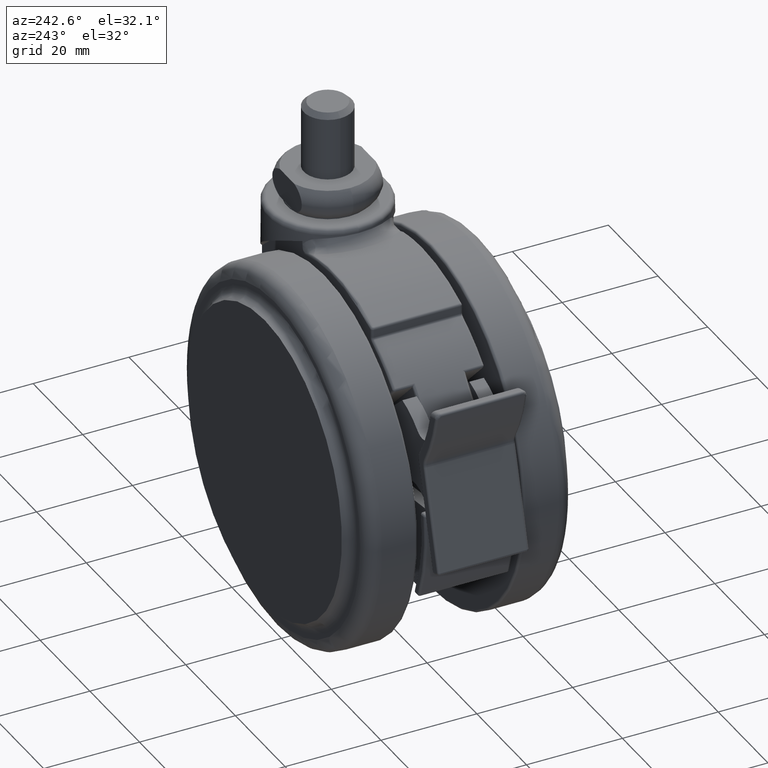
[diagram: clean part render]
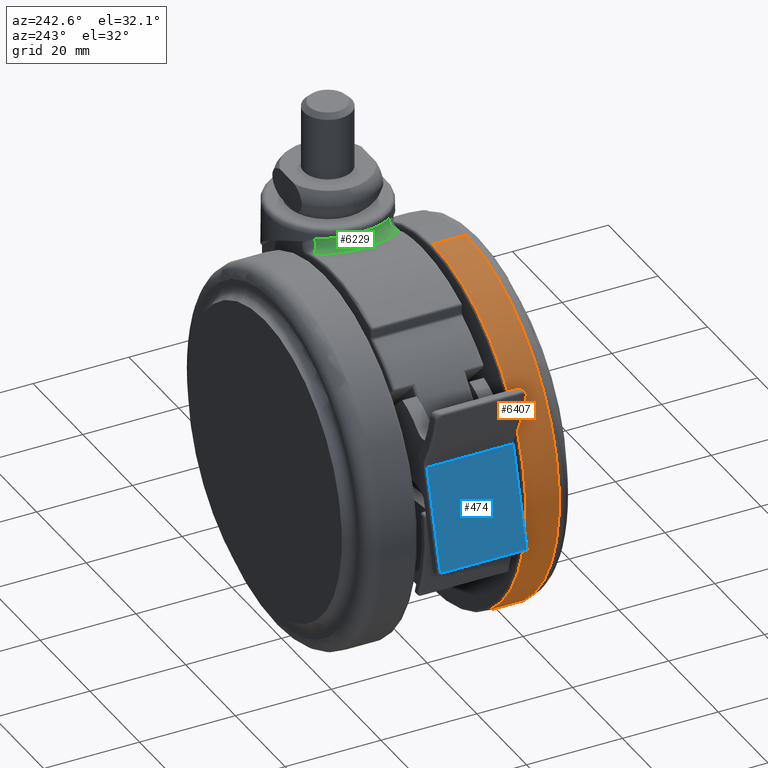
[diagram: same view with three faces highlighted in distinct colors, each labeled with its STEP entity id]
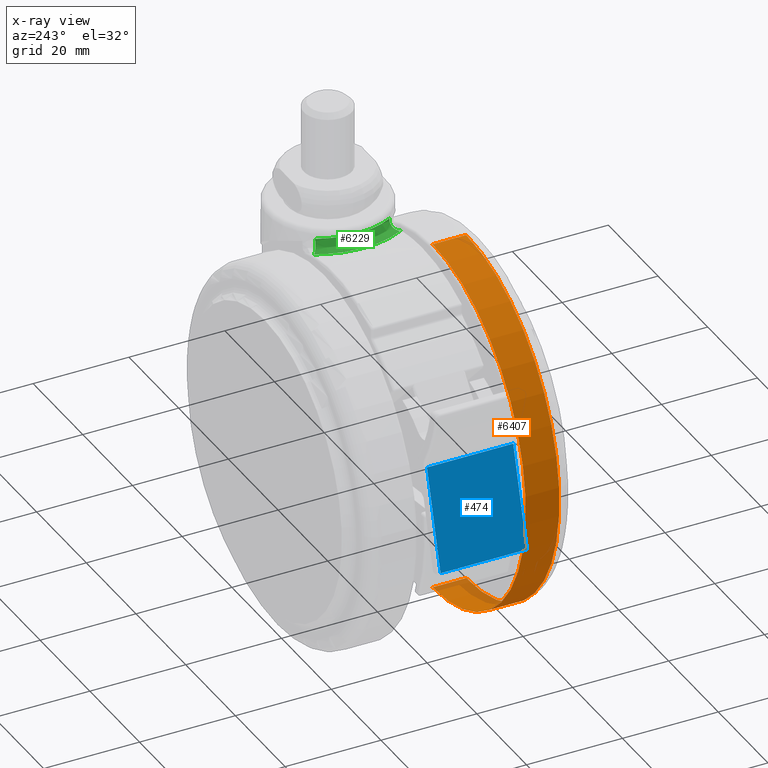
[diagram: x-ray of the same camera — body ghosted, the three highlighted faces saturated]
A machine part, auxiliary view with three faces highlighted in distinct colors.
The next image is the same camera in x-ray (body ghosted, the three faces saturated) — at least one of them is partly hidden behind the body in this view.
Their STEP definitions:

[orange] entity #6407 — the highlighted cylindrical surface (partial cylindrical patch) has radius 37.5 mm, axis along (0, -1, 0).
#153 = CARTESIAN_POINT ( 'NONE',  ( -20.00000000000000000, 0.0000000000000000000, -40.50000000000000000 ) ) ;
#292 = CARTESIAN_POINT ( 'NONE',  ( -19.99999999999999600, -18.50000000000000000, -3.000000000000000400 ) ) ;
#325 = DIRECTION ( 'NONE',  ( 0.0000000000000000000, -1.000000000000000000, 0.0000000000000000000 ) ) ;
#358 = ORIENTED_EDGE ( 'NONE', *, *, #3918, .T. ) ;
#521 = CARTESIAN_POINT ( 'NONE',  ( -20.00000000000000000, -18.50000000000000000, -78.00000000000001400 ) ) ;
#528 = CARTESIAN_POINT ( 'NONE',  ( -19.99999999999999600, -11.50000000000000000, -3.000000000000002700 ) ) ;
#1037 = LINE ( 'NONE', #6303, #6220 ) ;
#1123 = LINE ( 'NONE', #5709, #8080 ) ;
#1750 = DIRECTION ( 'NONE',  ( 0.0000000000000000000, -1.000000000000000000, 0.0000000000000000000 ) ) ;
#1966 = CARTESIAN_POINT ( 'NONE',  ( -20.00000000000000000, -11.50000000000000000, -78.00000000000000000 ) ) ;
#2095 = ORIENTED_EDGE ( 'NONE', *, *, #2346, .T. ) ;
#2346 = EDGE_CURVE ( 'NONE', #4663, #6836, #8118, .T. ) ;
#2498 = DIRECTION ( 'NONE',  ( 0.0000000000000000000, -1.000000000000000000, 0.0000000000000000000 ) ) ;
#2848 = VERTEX_POINT ( 'NONE', #292 ) ;
#2935 = DIRECTION ( 'NONE',  ( 0.0000000000000000000, -1.000000000000000000, 0.0000000000000000000 ) ) ;
#3005 = AXIS2_PLACEMENT_3D ( 'NONE', #153, #6898, #8242 ) ;
#3918 = EDGE_CURVE ( 'NONE', #6836, #4842, #1037, .T. ) ;
#4042 = CIRCLE ( 'NONE', #5767, 37.50000000000000000 ) ;
#4111 = AXIS2_PLACEMENT_3D ( 'NONE', #6544, #2498, #7219 ) ;
#4663 = VERTEX_POINT ( 'NONE', #528 ) ;
#4842 = VERTEX_POINT ( 'NONE', #521 ) ;
#4850 = EDGE_LOOP ( 'NONE', ( #7186, #2095, #358, #6147 ) ) ;
#5238 = EDGE_CURVE ( 'NONE', #4663, #2848, #1123, .T. ) ;
#5709 = CARTESIAN_POINT ( 'NONE',  ( -19.99999999999999600, 0.0000000000000000000, -3.000000000000002700 ) ) ;
#5767 = AXIS2_PLACEMENT_3D ( 'NONE', #5794, #1750, #6481 ) ;
#5794 = CARTESIAN_POINT ( 'NONE',  ( -20.00000000000000000, -18.50000000000000000, -40.50000000000000000 ) ) ;
#5851 = EDGE_CURVE ( 'NONE', #2848, #4842, #4042, .T. ) ;
#6147 = ORIENTED_EDGE ( 'NONE', *, *, #5851, .F. ) ;
#6220 = VECTOR ( 'NONE', #2935, 1000.000000000000000 ) ;
#6303 = CARTESIAN_POINT ( 'NONE',  ( -20.00000000000000000, 0.0000000000000000000, -78.00000000000000000 ) ) ;
#6407 = ADVANCED_FACE ( 'NONE', ( #8592 ), #8371, .T. ) ;
#6481 = DIRECTION ( 'NONE',  ( 0.0000000000000000000, 0.0000000000000000000, -1.000000000000000000 ) ) ;
#6544 = CARTESIAN_POINT ( 'NONE',  ( -20.00000000000000000, -11.50000000000000000, -40.50000000000000000 ) ) ;
#6836 = VERTEX_POINT ( 'NONE', #1966 ) ;
#6898 = DIRECTION ( 'NONE',  ( 0.0000000000000000000, -1.000000000000000000, 0.0000000000000000000 ) ) ;
#7186 = ORIENTED_EDGE ( 'NONE', *, *, #5238, .F. ) ;
#7219 = DIRECTION ( 'NONE',  ( 0.0000000000000000000, 0.0000000000000000000, -1.000000000000000000 ) ) ;
#8080 = VECTOR ( 'NONE', #325, 1000.000000000000000 ) ;
#8118 = CIRCLE ( 'NONE', #4111, 37.50000000000000000 ) ;
#8242 = DIRECTION ( 'NONE',  ( 0.0000000000000000000, 0.0000000000000000000, -1.000000000000000000 ) ) ;
#8371 = CYLINDRICAL_SURFACE ( 'NONE', #3005, 37.50000000000000000 ) ;
#8592 = FACE_OUTER_BOUND ( 'NONE', #4850, .T. ) ;

[blue] entity #474 — the highlighted planar face has unit normal (0.965, 0, -0.2623).
#83 = LINE ( 'NONE', #5695, #8627 ) ;
#130 = VERTEX_POINT ( 'NONE', #6606 ) ;
#474 = ADVANCED_FACE ( 'NONE', ( #2668 ), #804, .F. ) ;
#647 = CARTESIAN_POINT ( 'NONE',  ( -57.26813707824199900, -9.000000000000119000, -25.10946925378660300 ) ) ;
#804 = PLANE ( 'NONE',  #2946 ) ;
#1051 = CARTESIAN_POINT ( 'NONE',  ( -62.73171949859779100, -9.500000000000000000, -45.21249872396560200 ) ) ;
#1517 = DIRECTION ( 'NONE',  ( 0.9649957203271754000, 0.0000000000000000000, -0.2622656282287786400 ) ) ;
#1662 = DIRECTION ( 'NONE',  ( -0.2622656282287785800, 0.0000000000000000000, -0.9649957203271754000 ) ) ;
#1940 = VECTOR ( 'NONE', #7811, 1000.000000000000000 ) ;
#2012 = CARTESIAN_POINT ( 'NONE',  ( -57.26813707824199900, 990.5000000000000000, -25.10946925378660300 ) ) ;
#2117 = ORIENTED_EDGE ( 'NONE', *, *, #5538, .T. ) ;
#2124 = CARTESIAN_POINT ( 'NONE',  ( -62.73171949859779100, -9.000000000000119000, -45.21249872396560200 ) ) ;
#2214 = DIRECTION ( 'NONE',  ( -0.2622656282287786400, 0.0000000000000000000, -0.9649957203271754000 ) ) ;
#2390 = LINE ( 'NONE', #647, #5761 ) ;
#2668 = FACE_OUTER_BOUND ( 'NONE', #6319, .T. ) ;
#2838 = LINE ( 'NONE', #2012, #6224 ) ;
#2946 = AXIS2_PLACEMENT_3D ( 'NONE', #4215, #1517, #2214 ) ;
#3125 = ORIENTED_EDGE ( 'NONE', *, *, #7250, .T. ) ;
#3129 = EDGE_CURVE ( 'NONE', #130, #7689, #2838, .T. ) ;
#4215 = CARTESIAN_POINT ( 'NONE',  ( -62.81887799740359700, 990.5000000000000000, -45.53319487811200600 ) ) ;
#5520 = LINE ( 'NONE', #1051, #1940 ) ;
#5538 = EDGE_CURVE ( 'NONE', #6935, #130, #2390, .T. ) ;
#5695 = CARTESIAN_POINT ( 'NONE',  ( -62.81887799740359700, 9.000000000000000000, -45.53319487811200600 ) ) ;
#5761 = VECTOR ( 'NONE', #8083, 1000.000000000000000 ) ;
#6224 = VECTOR ( 'NONE', #8075, 1000.000000000000000 ) ;
#6319 = EDGE_LOOP ( 'NONE', ( #6483, #7849, #3125, #2117 ) ) ;
#6483 = ORIENTED_EDGE ( 'NONE', *, *, #3129, .T. ) ;
#6606 = CARTESIAN_POINT ( 'NONE',  ( -57.26813707824199900, -9.000000000000119000, -25.10946925378660300 ) ) ;
#6935 = VERTEX_POINT ( 'NONE', #2124 ) ;
#7080 = CARTESIAN_POINT ( 'NONE',  ( -57.26813707824199900, 9.000000000000000000, -25.10946925378660300 ) ) ;
#7250 = EDGE_CURVE ( 'NONE', #7366, #6935, #5520, .T. ) ;
#7257 = CARTESIAN_POINT ( 'NONE',  ( -62.73171949859779100, 9.000000000000000000, -45.21249872396560200 ) ) ;
#7366 = VERTEX_POINT ( 'NONE', #7257 ) ;
#7689 = VERTEX_POINT ( 'NONE', #7080 ) ;
#7811 = DIRECTION ( 'NONE',  ( -0.0000000000000000000, -1.000000000000000000, -0.0000000000000000000 ) ) ;
#7849 = ORIENTED_EDGE ( 'NONE', *, *, #8372, .T. ) ;
#8075 = DIRECTION ( 'NONE',  ( -0.0000000000000000000, 1.000000000000000000, -0.0000000000000000000 ) ) ;
#8083 = DIRECTION ( 'NONE',  ( 0.2622656282287785800, -0.0000000000000000000, 0.9649957203271754000 ) ) ;
#8372 = EDGE_CURVE ( 'NONE', #7689, #7366, #83, .T. ) ;
#8627 = VECTOR ( 'NONE', #1662, 1000.000000000000000 ) ;

[green] entity #6229 — the highlighted face is a freeform B-spline surface patch.
#183 = CARTESIAN_POINT ( 'NONE',  ( -13.76673725347666100, -5.515690235254416200, -3.520798847902592200 ) ) ;
#208 = CARTESIAN_POINT ( 'NONE',  ( -13.44440981816782200, 6.240356713991120700, -3.577115905190118500 ) ) ;
#316 = CARTESIAN_POINT ( 'NONE',  ( -12.20675224644967800, 2.780960610310266600, -1.433886200978378800 ) ) ;
#341 = CARTESIAN_POINT ( 'NONE',  ( -11.36493503213212200, -5.249211167221782900, -3.945290966279321000 ) ) ;
#368 = CARTESIAN_POINT ( 'NONE',  ( -12.44258851043211700, -1.386218585885863300, -1.393970327399974600 ) ) ;
#407 = CARTESIAN_POINT ( 'NONE',  ( -14.64791410779482900, 2.033247820386641100, -3.383838506898468000 ) ) ;
#434 = CARTESIAN_POINT ( 'NONE',  ( -11.61601016813185800, 4.631767738246596300, -3.885428193609642600 ) ) ;
#436 = DIRECTION ( 'NONE',  ( -0.7840563448897889300, 0.6206896551724252500, 0.0000000000000000000 ) ) ;
#505 = ORIENTED_EDGE ( 'NONE', *, *, #4522, .F. ) ;
#574 = CARTESIAN_POINT ( 'NONE',  ( -10.22913869206102800, 7.217421570345753600, -1.843251790289615500 ) ) ;
#860 = CARTESIAN_POINT ( 'NONE',  ( -14.46233037150766300, -3.193139030446999100, -3.410910313829803800 ) ) ;
#885 = CARTESIAN_POINT ( 'NONE',  ( -12.71572096823816400, 7.677998888504805400, -3.712341789016044400 ) ) ;
#893 = AXIS2_PLACEMENT_3D ( 'NONE', #962, #5691, #1656 ) ;
#962 = CARTESIAN_POINT ( 'NONE',  ( -11.36881700090219900, -8.999999999999799300, -1.954537490956569800 ) ) ;
#1001 = CARTESIAN_POINT ( 'NONE',  ( -12.42666126989931600, 1.396916351249774900, -1.396826883498183200 ) ) ;
#1027 = CARTESIAN_POINT ( 'NONE',  ( -13.75740914328862800, -5.539886852162640100, -3.522359133074404600 ) ) ;
#1055 = CARTESIAN_POINT ( 'NONE',  ( -12.50021674241227400, -0.6748257799771526500, -3.685634308836894600 ) ) ;
#1087 = CARTESIAN_POINT ( 'NONE',  ( -12.38143924739416800, 1.752799845176854300, -1.404309893875311400 ) ) ;
#1117 = CARTESIAN_POINT ( 'NONE',  ( -13.42780526189368700, 6.276942187451378900, -3.580063116712092400 ) ) ;
#1148 = CARTESIAN_POINT ( 'NONE',  ( -12.44215598327031800, -1.390013733796367600, -1.394041035653304000 ) ) ;
#1253 = ORIENTED_EDGE ( 'NONE', *, *, #1843, .T. ) ;
#1260 = CARTESIAN_POINT ( 'NONE',  ( -10.00387822789169300, 7.501971014199014600, -4.309705399789360800 ) ) ;
#1550 = CARTESIAN_POINT ( 'NONE',  ( -14.77833516021256700, -0.8047802647944869400, -3.365323263524405900 ) ) ;
#1582 = CARTESIAN_POINT ( 'NONE',  ( -11.80583892490692000, 9.000000000000199000, -3.906206478756300000 ) ) ;
#1656 = DIRECTION ( 'NONE',  ( -0.7840563448898070200, -0.6206896551724024900, 0.0000000000000000000 ) ) ;
#1700 = CARTESIAN_POINT ( 'NONE',  ( -12.49999999999920400, 0.3481409238785143100, -1.384785568784303400 ) ) ;
#1720 = CARTESIAN_POINT ( 'NONE',  ( -11.57281979662991500, -4.775764527663940700, -1.550218287051912100 ) ) ;
#1743 = CARTESIAN_POINT ( 'NONE',  ( -14.77835403436817600, 0.4089545887726734900, -3.365320609626290000 ) ) ;
#1776 = CARTESIAN_POINT ( 'NONE',  ( -12.22119093489626900, 2.713074913221552400, -3.746103444554892600 ) ) ;
#1808 = CARTESIAN_POINT ( 'NONE',  ( -11.27352431839457100, 5.411157058193303700, -1.610999816412539200 ) ) ;
#1835 = CARTESIAN_POINT ( 'NONE',  ( -12.03197600258147100, -3.459614855445032300, -1.464037963532014200 ) ) ;
#1843 = EDGE_CURVE ( 'NONE', #8385, #4460, #2755, .T. ) ;
#2011 = ORIENTED_EDGE ( 'NONE', *, *, #4807, .F. ) ;
#2236 = CARTESIAN_POINT ( 'NONE',  ( -14.76286249200867000, 0.8001164787444028400, -3.367488309329601700 ) ) ;
#2238 =( BOUNDED_SURFACE ( )  B_SPLINE_SURFACE ( 3, 2, ( 
 ( #4349, #8389, #6409 ),
 ( #2363, #7093, #3040 ),
 ( #7762, #3682, #8428 ),
 ( #4375, #341, #5063 ),
 ( #1027, #5751, #1720 ),
 ( #6444, #2391, #7112 ),
 ( #3072, #7787, #3716 ),
 ( #8451, #4415, #368 ),
 ( #5090, #1055, #5786 ),
 ( #1743, #6471, #2427 ),
 ( #7144, #3095, #7817 ),
 ( #3750, #8484, #4442 ),
 ( #407, #5120, #1087 ),
 ( #5817, #1776, #6503 ),
 ( #2458, #7181, #3124 ),
 ( #7839, #3785, #8516 ),
 ( #4474, #434, #5160 ),
 ( #1117, #5844, #1808 ),
 ( #6532, #2486, #7206 ),
 ( #3152, #7874, #3808 ),
 ( #8658, #4620, #574 ),
 ( #5294, #1260, #5988 ) ),
 .UNSPECIFIED., .F., .F., .F. ) 
 B_SPLINE_SURFACE_WITH_KNOTS ( ( 4, 2, 2, 2, 2, 2, 2, 2, 2, 2, 4 ),
 ( 3, 3 ),
 ( 0.04484670150587637800, 0.04727635565138270400, 0.04970600979688903600, 0.05213566394239536900, 0.05456531808790170100, 0.05578014516065486800, 0.05699497223340803400, 0.05942462637891436600, 0.06063945345166753300, 0.06185428052442069900, 0.06428393466992703100 ),
 ( 0.0000000000000000000, 1.000000000000000000 ),
 .UNSPECIFIED. ) 
 GEOMETRIC_REPRESENTATION_ITEM ( )  RATIONAL_B_SPLINE_SURFACE ( (
 ( 1.000000000000000000, 0.6436905676697364200, 1.000000000000000000),
 ( 1.000000000000000000, 0.6446167195811878200, 1.000000000000000000),
 ( 1.000000000000000000, 0.6459663824866793700, 1.000000000000000000),
 ( 1.000000000000000000, 0.6488008187546942000, 1.000000000000000000),
 ( 1.000000000000000000, 0.6502913982318588900, 1.000000000000000000),
 ( 1.000000000000000000, 0.6529308301003523600, 1.000000000000000000),
 ( 1.000000000000000000, 0.6540806104083222200, 1.000000000000000000),
 ( 1.000000000000000000, 0.6556257350229580700, 1.000000000000000000),
 ( 1.000000000000000000, 0.6560349305132873200, 1.000000000000000000),
 ( 1.000000000000000000, 0.6560325418615674500, 1.000000000000000000),
 ( 1.000000000000000000, 0.6559301682245548500, 1.000000000000000000),
 ( 1.000000000000000000, 0.6555237969605876000, 1.000000000000000000),
 ( 1.000000000000000000, 0.6552189024531365200, 1.000000000000000000),
 ( 1.000000000000000000, 0.6540494927733462300, 1.000000000000000000),
 ( 1.000000000000000000, 0.6529229353915987400, 1.000000000000000000),
 ( 1.000000000000000000, 0.6509506497409466300, 1.000000000000000000),
 ( 1.000000000000000000, 0.6502471699235160600, 1.000000000000000000),
 ( 1.000000000000000000, 0.6488029830699276700, 1.000000000000000000),
 ( 1.000000000000000000, 0.6480638441045465400, 1.000000000000000000),
 ( 1.000000000000000000, 0.6459337708149696100, 1.000000000000000000),
 ( 1.000000000000000000, 0.6446147516755581500, 1.000000000000000000),
 ( 1.000000000000000000, 0.6436905676697354300, 1.000000000000000000) ) ) 
 REPRESENTATION_ITEM ( '' )  SURFACE ( )  );
#2359 = VERTEX_POINT ( 'NONE', #2469 ) ;
#2363 = CARTESIAN_POINT ( 'NONE',  ( -12.27961797063729900, -8.369602557302929600, -3.800116854228379200 ) ) ;
#2391 = CARTESIAN_POINT ( 'NONE',  ( -12.05830869847357600, -3.362648631589590500, -3.782068017310765500 ) ) ;
#2427 = CARTESIAN_POINT ( 'NONE',  ( -12.49988469792359100, 0.3525470592868075700, -1.384804375473415400 ) ) ;
#2458 = CARTESIAN_POINT ( 'NONE',  ( -14.26262791744813500, 4.014226808755746700, -3.440615714069474000 ) ) ;
#2469 = CARTESIAN_POINT ( 'NONE',  ( -12.50000000000000000, 2.869450499157187200E-011, -1.384785568784175000 ) ) ;
#2486 = CARTESIAN_POINT ( 'NONE',  ( -11.20571701339621200, 5.552444892520703900, -3.985973775710013100 ) ) ;
#2515 = CARTESIAN_POINT ( 'NONE',  ( -11.28930404226374100, -5.411346617770612400, -1.606111625444742300 ) ) ;
#2755 = CIRCLE ( 'NONE', #4298, 2.000000000000001300 ) ;
#2901 = FACE_OUTER_BOUND ( 'NONE', #3851, .T. ) ;
#2905 = CARTESIAN_POINT ( 'NONE',  ( -14.65106184547922300, 2.009139325001239500, -3.383386752798714300 ) ) ;
#2923 = VERTEX_POINT ( 'NONE', #6484 ) ;
#2981 = CARTESIAN_POINT ( 'NONE',  ( -9.800704311122359500, 7.758620689655350200, -1.954537490956624900 ) ) ;
#3016 = CARTESIAN_POINT ( 'NONE',  ( -11.12152493988276600, 5.716934575645527000, -1.642657052712366100 ) ) ;
#3040 = CARTESIAN_POINT ( 'NONE',  ( -10.23093150732624000, -7.215156882716042800, -1.842786106866271600 ) ) ;
#3072 = CARTESIAN_POINT ( 'NONE',  ( -14.45927265481329400, -3.208818957581557600, -3.411361970597218000 ) ) ;
#3091 = B_SPLINE_CURVE_WITH_KNOTS ( 'NONE', 3,
 ( #5087, #8546, #1148, #5868, #1835, #6554, #2515, #7231, #3178, #7902 ),
 .UNSPECIFIED., .F., .F.,
 ( 4, 2, 2, 2, 4 ),
 ( 0.008403985962122183200, 0.01050631120252740900, 0.01260863644293263600, 0.01471096168333786000, 0.01681328692374308600 ),
 .UNSPECIFIED. ) ;
#3095 = CARTESIAN_POINT ( 'NONE',  ( -12.48597744563084800, 0.6837785532725965100, -3.688662625138012400 ) ) ;
#3124 = CARTESIAN_POINT ( 'NONE',  ( -12.03158167205374700, 3.460540352347943200, -1.464115218589007400 ) ) ;
#3134 = ORIENTED_EDGE ( 'NONE', *, *, #3917, .F. ) ;
#3152 = CARTESIAN_POINT ( 'NONE',  ( -12.69960086889266800, 7.704609427442551200, -3.715545518965826900 ) ) ;
#3178 = CARTESIAN_POINT ( 'NONE',  ( -10.23316483469823400, -7.212335739361000400, -1.842206000191077800 ) ) ;
#3530 = CARTESIAN_POINT ( 'NONE',  ( -12.28908347849011800, -8.357008010647227500, -3.797997317319584500 ) ) ;
#3564 = CARTESIAN_POINT ( 'NONE',  ( -14.27199484134090400, 3.979332644004980800, -3.439184762139114500 ) ) ;
#3664 = CARTESIAN_POINT ( 'NONE',  ( -11.56263579329884200, 4.762142757172538800, -1.552792187675227800 ) ) ;
#3682 = CARTESIAN_POINT ( 'NONE',  ( -10.74897612832377500, -6.419335665259256800, -4.102790449905606700 ) ) ;
#3716 = CARTESIAN_POINT ( 'NONE',  ( -12.21014413502213400, -2.766223239324191700, -1.433301275816341900 ) ) ;
#3750 = CARTESIAN_POINT ( 'NONE',  ( -14.69707179396114300, 1.626530495829026500, -3.376826177385430700 ) ) ;
#3785 = CARTESIAN_POINT ( 'NONE',  ( -11.73588996651002100, 4.318565699653575500, -3.857047753391942300 ) ) ;
#3808 = CARTESIAN_POINT ( 'NONE',  ( -10.61228124861605000, 6.641904678723070900, -1.753707946925670000 ) ) ;
#3851 = EDGE_LOOP ( 'NONE', ( #1253, #3134, #7645, #2011, #505 ) ) ;
#3917 = EDGE_CURVE ( 'NONE', #8614, #4460, #7278, .T. ) ;
#4041 = B_SPLINE_CURVE_WITH_KNOTS ( 'NONE', 3,
 ( #2981, #6385, #7066, #3016, #7737, #3664, #8394, #4355, #316, #5042, #1001, #5726, #1700, #6415 ),
 .UNSPECIFIED., .F., .F.,
 ( 4, 2, 2, 2, 2, 2, 4 ),
 ( 0.0000000000000000000, 0.002100996490530544500, 0.003151494735795817800, 0.004201992981061091600, 0.006302989471591637400, 0.007353487716856911200, 0.008403985962122183200 ),
 .UNSPECIFIED. ) ;
#4213 = CARTESIAN_POINT ( 'NONE',  ( -13.45667544474254900, -6.252393314288934100, -3.573375431617505300 ) ) ;
#4241 = CARTESIAN_POINT ( 'NONE',  ( -13.75682373942462900, 5.496854230182186100, -3.523008739348636900 ) ) ;
#4298 = AXIS2_PLACEMENT_3D ( 'NONE', #5845, #5161, #436 ) ;
#4319 = CARTESIAN_POINT ( 'NONE',  ( -9.800704311122359500, 7.758620689655350200, -1.954537490956624900 ) ) ;
#4349 = CARTESIAN_POINT ( 'NONE',  ( -11.80583892490717600, -8.999999999999809900, -3.906206478756179200 ) ) ;
#4355 = CARTESIAN_POINT ( 'NONE',  ( -12.03351875885955000, 3.453605914257576300, -1.463773444533736700 ) ) ;
#4375 = CARTESIAN_POINT ( 'NONE',  ( -13.44598337155253300, -6.275574200016770000, -3.575274267550878200 ) ) ;
#4415 = CARTESIAN_POINT ( 'NONE',  ( -12.44533146182879000, -1.351114693501114700, -3.697207536290607200 ) ) ;
#4442 = CARTESIAN_POINT ( 'NONE',  ( -12.42607668659405500, 1.402181461931724300, -1.396923573543814800 ) ) ;
#4460 = VERTEX_POINT ( 'NONE', #5604 ) ;
#4474 = CARTESIAN_POINT ( 'NONE',  ( -13.74236799350950400, 5.533911409889630500, -3.525447604968885400 ) ) ;
#4522 = EDGE_CURVE ( 'NONE', #8385, #2359, #4041, .T. ) ;
#4620 = CARTESIAN_POINT ( 'NONE',  ( -10.39110348638190100, 6.983749305816072500, -4.198635347331483900 ) ) ;
#4717 = CARTESIAN_POINT ( 'NONE',  ( -11.80583892490720100, -8.999999999999799300, -3.906206478756240100 ) ) ;
#4807 = EDGE_CURVE ( 'NONE', #2359, #2923, #3091, .T. ) ;
#4906 = CIRCLE ( 'NONE', #893, 1.999999999999999300 ) ;
#4910 = CARTESIAN_POINT ( 'NONE',  ( -14.26965428946589900, -3.988591974172911200, -3.439535616074076400 ) ) ;
#4943 = CARTESIAN_POINT ( 'NONE',  ( -13.27228778837124200, 6.607394942648217500, -3.607947769029147700 ) ) ;
#5042 = CARTESIAN_POINT ( 'NONE',  ( -12.38220688136235400, 1.747308881599990000, -1.404181937845039500 ) ) ;
#5063 = CARTESIAN_POINT ( 'NONE',  ( -11.29003087749790700, -5.409977758597722000, -1.605955561507322200 ) ) ;
#5087 = CARTESIAN_POINT ( 'NONE',  ( -12.50000000000000000, 2.869450499157187200E-011, -1.384785568784175000 ) ) ;
#5090 = CARTESIAN_POINT ( 'NONE',  ( -14.77873273456547500, -0.8035988518365272400, -3.365267360489900800 ) ) ;
#5120 = CARTESIAN_POINT ( 'NONE',  ( -12.38764902925202600, 1.706899129396034900, -3.709782561560228200 ) ) ;
#5160 = CARTESIAN_POINT ( 'NONE',  ( -11.55916174110943300, 4.770613284342056600, -1.553471477091423500 ) ) ;
#5161 = DIRECTION ( 'NONE',  ( 0.6147801558791191600, 0.7765914542195031500, -0.1376628968549030200 ) ) ;
#5294 = CARTESIAN_POINT ( 'NONE',  ( -11.80583892490691900, 9.000000000000207800, -3.906206478756240900 ) ) ;
#5586 = CARTESIAN_POINT ( 'NONE',  ( -14.71545526549742400, -1.603279406154955100, -3.373999062487971700 ) ) ;
#5604 = CARTESIAN_POINT ( 'NONE',  ( -11.80583892490692000, 9.000000000000199000, -3.906206478756300000 ) ) ;
#5614 = CARTESIAN_POINT ( 'NONE',  ( -12.28907039948639800, 8.357025413212014100, -3.798000245998260000 ) ) ;
#5691 = DIRECTION ( 'NONE',  ( -0.6147801558790960700, 0.7765914542195229100, 0.1376628968548940000 ) ) ;
#5726 = CARTESIAN_POINT ( 'NONE',  ( -12.48548264933146800, 0.6971431864744199700, -1.387141981265432900 ) ) ;
#5751 = CARTESIAN_POINT ( 'NONE',  ( -11.62813341630660700, -4.638219213165355000, -3.882104872917183400 ) ) ;
#5786 = CARTESIAN_POINT ( 'NONE',  ( -12.50022857496705700, -0.6927576308935864400, -1.384748286381915200 ) ) ;
#5817 = CARTESIAN_POINT ( 'NONE',  ( -14.45399381680682900, 3.233216678118739900, -3.412146396237270500 ) ) ;
#5844 = CARTESIAN_POINT ( 'NONE',  ( -11.35089415407361500, 5.249042571531141700, -3.949889673651641800 ) ) ;
#5845 = CARTESIAN_POINT ( 'NONE',  ( -11.36881700090194000, 9.000000000000199000, -1.954537490956624900 ) ) ;
#5868 = CARTESIAN_POINT ( 'NONE',  ( -12.20936245464922700, -2.769630326085725300, -1.433436031539663000 ) ) ;
#5988 = CARTESIAN_POINT ( 'NONE',  ( -9.800704311122354200, 7.758620689655354700, -1.954537490956574000 ) ) ;
#6198 = EDGE_CURVE ( 'NONE', #2923, #8614, #4906, .T. ) ;
#6229 = ADVANCED_FACE ( 'NONE', ( #2901 ), #2238, .F. ) ;
#6273 = CARTESIAN_POINT ( 'NONE',  ( -14.77855356133890500, 0.3982309277750187800, -3.365292554086369800 ) ) ;
#6385 = CARTESIAN_POINT ( 'NONE',  ( -10.23288540953868700, 7.212688709750463700, -1.842278580792119400 ) ) ;
#6409 = CARTESIAN_POINT ( 'NONE',  ( -9.800704311122588700, -7.758620689655004700, -1.954537490956508500 ) ) ;
#6415 = CARTESIAN_POINT ( 'NONE',  ( -12.50000000000000000, 2.869450499157187200E-011, -1.384785568784175000 ) ) ;
#6444 = CARTESIAN_POINT ( 'NONE',  ( -14.26410270560532600, -4.009457523853277500, -3.440381182265532400 ) ) ;
#6471 = CARTESIAN_POINT ( 'NONE',  ( -12.49989066632533900, 0.3434227209801028500, -3.685703853844811500 ) ) ;
#6484 = CARTESIAN_POINT ( 'NONE',  ( -9.800704311122590400, -7.758620689654999400, -1.954537490956569800 ) ) ;
#6503 = CARTESIAN_POINT ( 'NONE',  ( -12.20535070704289500, 2.787255756967012700, -1.434127537485408300 ) ) ;
#6532 = CARTESIAN_POINT ( 'NONE',  ( -13.25494946504402100, 6.642797806996770600, -3.611115861060902400 ) ) ;
#6554 = CARTESIAN_POINT ( 'NONE',  ( -11.57190963193746400, -4.777895870044183400, -1.550396673996674600 ) ) ;
#6892 = CARTESIAN_POINT ( 'NONE',  ( -11.80583892490720100, -8.999999999999799300, -3.906206478756240100 ) ) ;
#6958 = CARTESIAN_POINT ( 'NONE',  ( -14.69919688183547300, 1.605694505952603800, -3.376523330406665700 ) ) ;
#7066 = CARTESIAN_POINT ( 'NONE',  ( -10.61737033842575600, 6.633858516677821400, -1.752537952465582000 ) ) ;
#7093 = CARTESIAN_POINT ( 'NONE',  ( -10.39269488121259900, -6.981619550544314400, -4.198178878333975700 ) ) ;
#7112 = CARTESIAN_POINT ( 'NONE',  ( -12.03292084776800200, -3.456428899935980700, -1.463868178439487800 ) ) ;
#7144 = CARTESIAN_POINT ( 'NONE',  ( -14.76221305837038300, 0.8141330269039298600, -3.367579257789394400 ) ) ;
#7181 = CARTESIAN_POINT ( 'NONE',  ( -12.05705755590425500, 3.366617030126137800, -3.782355860645665300 ) ) ;
#7206 = CARTESIAN_POINT ( 'NONE',  ( -11.11656330741307000, 5.726549833671270100, -1.643708706843317800 ) ) ;
#7231 = CARTESIAN_POINT ( 'NONE',  ( -10.62133095665980600, -6.627094890329384000, -1.751652691912444400 ) ) ;
#7278 = B_SPLINE_CURVE_WITH_KNOTS ( 'NONE', 3,
 ( #6892, #3530, #7611, #4213, #183, #4910, #860, #5586, #1550, #6273, #2236, #6958, #2905, #7632, #3564, #8291, #4241, #208, #4943, #885, #5614, #1582 ),
 .UNSPECIFIED., .F., .F.,
 ( 4, 2, 2, 2, 2, 2, 2, 2, 2, 2, 4 ),
 ( 0.0000000000000000000, 0.002433144462994349000, 0.004866288925988697900, 0.007299433388983046400, 0.009732577851977395800, 0.01094915008347457100, 0.01216572231497174500, 0.01459886677796609300, 0.01581543900946326800, 0.01703201124096044600, 0.01946515570395479500 ),
 .UNSPECIFIED. ) ;
#7611 = CARTESIAN_POINT ( 'NONE',  ( -12.71933375164516100, -7.671364508898795600, -3.711651338640235700 ) ) ;
#7632 = CARTESIAN_POINT ( 'NONE',  ( -14.46055519043960800, 3.201425114573142900, -3.411173859305353800 ) ) ;
#7645 = ORIENTED_EDGE ( 'NONE', *, *, #6198, .F. ) ;
#7737 = CARTESIAN_POINT ( 'NONE',  ( -11.27798686458381500, 5.401811030611991500, -1.610081209059384100 ) ) ;
#7762 = CARTESIAN_POINT ( 'NONE',  ( -12.70918893234493800, -7.688208185669222600, -3.713663156569747800 ) ) ;
#7787 = CARTESIAN_POINT ( 'NONE',  ( -12.22571392365599700, -2.692650237302261400, -3.745105666753715500 ) ) ;
#7817 = CARTESIAN_POINT ( 'NONE',  ( -12.48522794943108100, 0.7018388162863493700, -1.387183484840334400 ) ) ;
#7839 = CARTESIAN_POINT ( 'NONE',  ( -13.88394565876725300, 5.157534995310437700, -3.501888834542328200 ) ) ;
#7874 = CARTESIAN_POINT ( 'NONE',  ( -10.74099297130630300, 6.432905321320168600, -4.104891631931407900 ) ) ;
#7902 = CARTESIAN_POINT ( 'NONE',  ( -9.800704311122590400, -7.758620689654999400, -1.954537490956569800 ) ) ;
#8291 = CARTESIAN_POINT ( 'NONE',  ( -13.89717161774413700, 5.120679773975008500, -3.499709419589013900 ) ) ;
#8385 = VERTEX_POINT ( 'NONE', #4319 ) ;
#8389 = CARTESIAN_POINT ( 'NONE',  ( -10.00387822789190500, -7.501971014198679700, -4.309705399789292500 ) ) ;
#8394 = CARTESIAN_POINT ( 'NONE',  ( -11.69077132150132800, 4.438086050435169100, -1.528072952406501800 ) ) ;
#8428 = CARTESIAN_POINT ( 'NONE',  ( -10.62098765132848900, -6.627765677338469900, -1.751725191899736100 ) ) ;
#8451 = CARTESIAN_POINT ( 'NONE',  ( -14.71525570157307600, -1.608013559662115000, -3.374022462835994500 ) ) ;
#8484 = CARTESIAN_POINT ( 'NONE',  ( -12.42994016269599000, 1.365630475449260800, -3.700683218444595500 ) ) ;
#8516 = CARTESIAN_POINT ( 'NONE',  ( -11.68772077066061500, 4.446150858040095200, -1.528656239166671100 ) ) ;
#8546 = CARTESIAN_POINT ( 'NONE',  ( -12.50000000000160000, -0.6967222027224853100, -1.384785568783912800 ) ) ;
#8614 = VERTEX_POINT ( 'NONE', #4717 ) ;
#8658 = CARTESIAN_POINT ( 'NONE',  ( -12.27766593581125700, 8.372199880409128900, -3.800553958071672100 ) ) ;